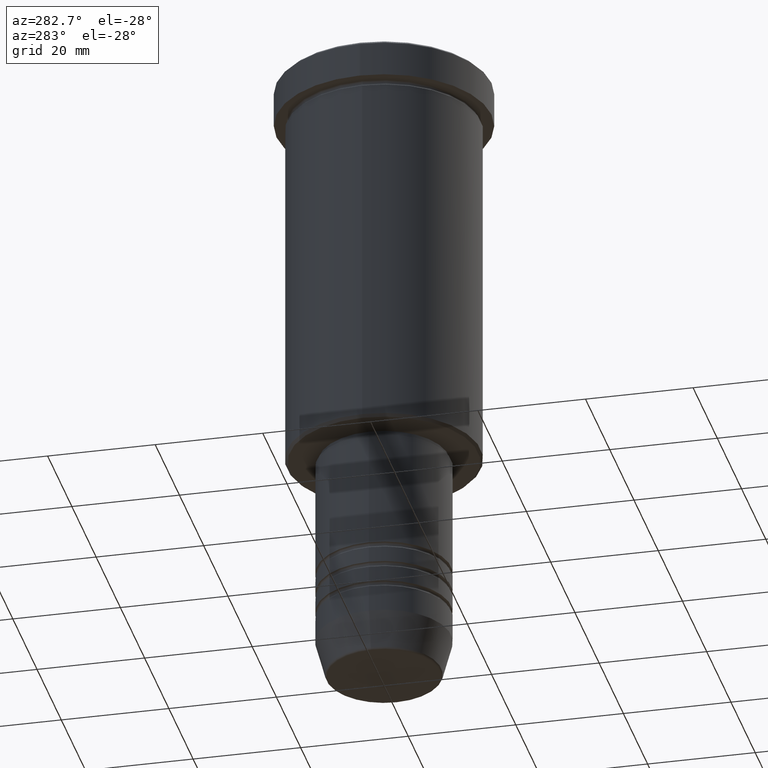
[diagram: clean part render]
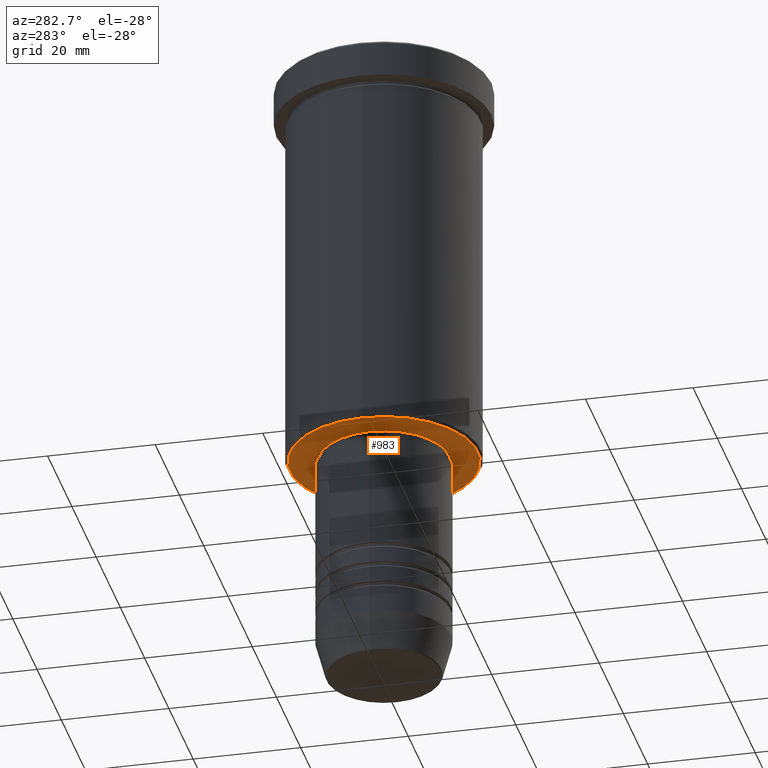
[diagram: same view with one face highlighted and labeled with its STEP entity id]
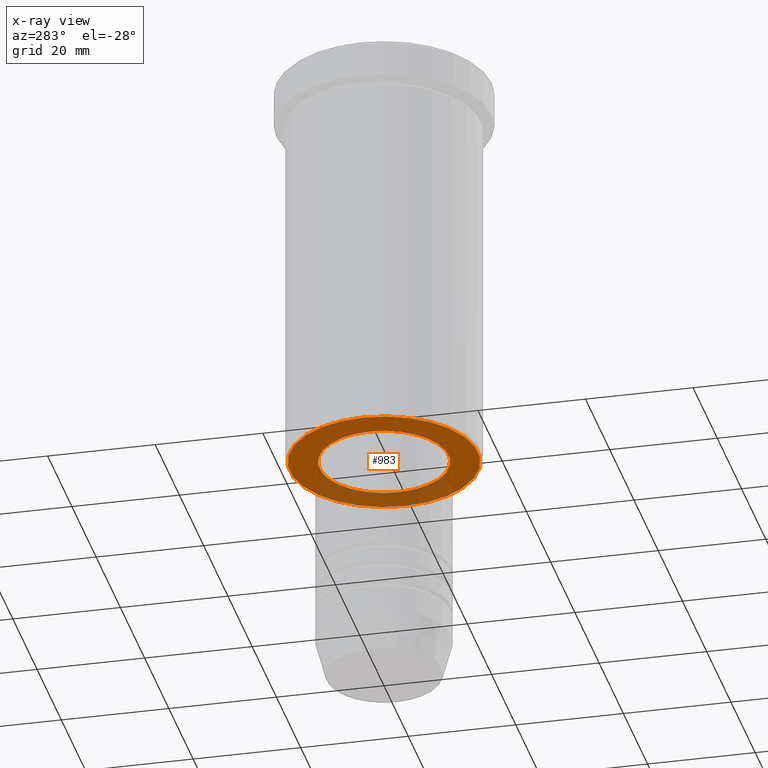
[diagram: x-ray of the same camera — body ghosted, the highlighted face saturated]
A machine part, auxiliary view. The second image highlights one B-rep face of the part: STEP entity #983.
The next image is the same camera in x-ray: the body ghosted, the highlighted face saturated — about 29% of this face is hidden behind the body in this view.
In plain terms, the highlighted planar face has unit normal (0, 0, -1).
Its self-contained STEP definition (entity closure, byte-faithful):
#10 = CARTESIAN_POINT ( 'NONE',  ( 0.000000000000000000, 18.00000000000000000, -76.00000000000001421 ) ) ;
#15 = CIRCLE ( 'NONE', #133, 17.50000000000001421 ) ;
#27 = VERTEX_POINT ( 'NONE', #830 ) ;
#30 = CARTESIAN_POINT ( 'NONE',  ( 0.000000000000000000, 0.000000000000000000, -76.00000000000001421 ) ) ;
#40 = VERTEX_POINT ( 'NONE', #942 ) ;
#63 = CIRCLE ( 'NONE', #240, 12.00000000000000000 ) ;
#87 = AXIS2_PLACEMENT_3D ( 'NONE', #30, #225, #844 ) ;
#106 = DIRECTION ( 'NONE',  ( 0.000000000000000000, 0.000000000000000000, -1.000000000000000000 ) ) ;
#125 = CARTESIAN_POINT ( 'NONE',  ( -12.00000000000000000, 1.469576158976823947E-15, -76.00000000000001421 ) ) ;
#133 = AXIS2_PLACEMENT_3D ( 'NONE', #953, #420, #517 ) ;
#200 = DIRECTION ( 'NONE',  ( 1.000000000000000000, 0.000000000000000000, 0.000000000000000000 ) ) ;
#208 = CARTESIAN_POINT ( 'NONE',  ( 0.000000000000000000, 0.000000000000000000, -76.00000000000001421 ) ) ;
#210 = FACE_BOUND ( 'NONE', #406, .T. ) ;
#225 = DIRECTION ( 'NONE',  ( -0.000000000000000000, -0.000000000000000000, 1.000000000000000000 ) ) ;
#240 = AXIS2_PLACEMENT_3D ( 'NONE', #208, #665, #200 ) ;
#264 = ORIENTED_EDGE ( 'NONE', *, *, #338, .T. ) ;
#338 = EDGE_CURVE ( 'NONE', #609, #1151, #553, .T. ) ;
#406 = EDGE_LOOP ( 'NONE', ( #264, #851 ) ) ;
#420 = DIRECTION ( 'NONE',  ( 0.000000000000000000, 0.000000000000000000, -1.000000000000000000 ) ) ;
#485 = EDGE_CURVE ( 'NONE', #1151, #609, #63, .T. ) ;
#517 = DIRECTION ( 'NONE',  ( -1.000000000000000000, 0.000000000000000000, 0.000000000000000000 ) ) ;
#543 = EDGE_CURVE ( 'NONE', #40, #27, #15, .T. ) ;
#553 = CIRCLE ( 'NONE', #87, 12.00000000000000000 ) ;
#567 = DIRECTION ( 'NONE',  ( -1.000000000000000000, 0.000000000000000000, 0.000000000000000000 ) ) ;
#592 = PLANE ( 'NONE',  #706 ) ;
#609 = VERTEX_POINT ( 'NONE', #1017 ) ;
#613 = ORIENTED_EDGE ( 'NONE', *, *, #925, .T. ) ;
#665 = DIRECTION ( 'NONE',  ( -0.000000000000000000, -0.000000000000000000, 1.000000000000000000 ) ) ;
#706 = AXIS2_PLACEMENT_3D ( 'NONE', #10, #106, #912 ) ;
#749 = CARTESIAN_POINT ( 'NONE',  ( 0.000000000000000000, 0.000000000000000000, -76.00000000000001421 ) ) ;
#763 = EDGE_LOOP ( 'NONE', ( #613, #914 ) ) ;
#830 = CARTESIAN_POINT ( 'NONE',  ( 17.50000000000001421, 0.000000000000000000, -76.00000000000001421 ) ) ;
#844 = DIRECTION ( 'NONE',  ( 1.000000000000000000, 0.000000000000000000, 0.000000000000000000 ) ) ;
#849 = AXIS2_PLACEMENT_3D ( 'NONE', #749, #1181, #567 ) ;
#851 = ORIENTED_EDGE ( 'NONE', *, *, #485, .T. ) ;
#912 = DIRECTION ( 'NONE',  ( -1.000000000000000000, 0.000000000000000000, -0.000000000000000000 ) ) ;
#914 = ORIENTED_EDGE ( 'NONE', *, *, #543, .T. ) ;
#925 = EDGE_CURVE ( 'NONE', #27, #40, #1150, .T. ) ;
#942 = CARTESIAN_POINT ( 'NONE',  ( -17.50000000000001421, 2.173748068486552430E-15, -76.00000000000001421 ) ) ;
#953 = CARTESIAN_POINT ( 'NONE',  ( 0.000000000000000000, 0.000000000000000000, -76.00000000000001421 ) ) ;
#983 = ADVANCED_FACE ( 'NONE', ( #1029, #210 ), #592, .T. ) ;
#1017 = CARTESIAN_POINT ( 'NONE',  ( 12.00000000000000000, 0.000000000000000000, -76.00000000000001421 ) ) ;
#1029 = FACE_OUTER_BOUND ( 'NONE', #763, .T. ) ;
#1150 = CIRCLE ( 'NONE', #849, 17.50000000000001421 ) ;
#1151 = VERTEX_POINT ( 'NONE', #125 ) ;
#1181 = DIRECTION ( 'NONE',  ( 0.000000000000000000, 0.000000000000000000, -1.000000000000000000 ) ) ;